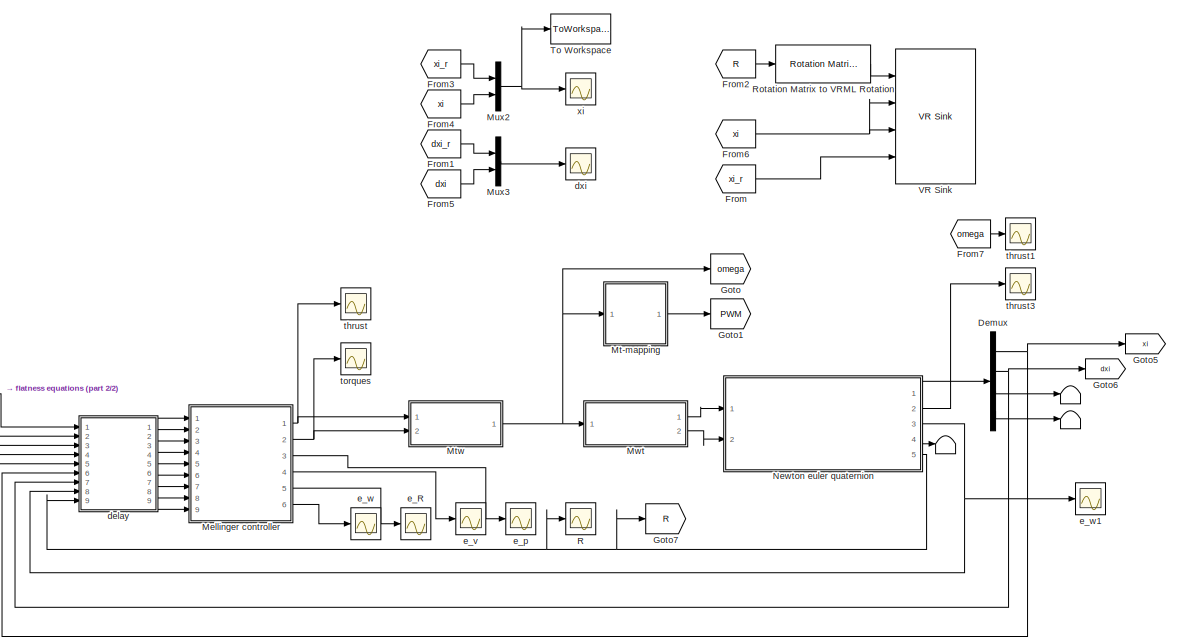
[diagram: root canvas - part 1/2, center side, full height]
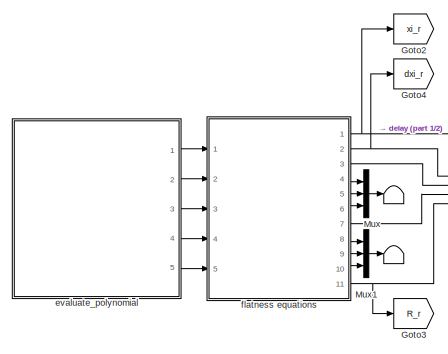
[diagram: root canvas - part 2/2, bottom left region]
MODEL slx_60e3ffbe1d15
KIND model
CONFIG AbsTol = auto
CONFIG FixedStep = auto
CONFIG MaxStep = auto
CONFIG MinStep = auto
CONFIG RelTol = 1e-3
CONFIG SampleTimeConstraint = Unconstrained
CONFIG Solver = VariableStepAuto
CONFIG SolverMode = Auto
CONFIG SolverName = VariableStepAuto
CONFIG StartTime = 0.0
CONFIG StopTime = 10
BLOCK [Terminator]  
BLOCK [Terminator]   
BLOCK [Terminator]      
BLOCK [Terminator]       
BLOCK [Terminator]        
BLOCK [Demux] Demux
  DisplayOption = bar
  Outputs = [3,3,3,3]
  Ports = [1, 4]
BLOCK [From] From
  GotoTag = xi_r
BLOCK [From] From1
  GotoTag = dxi_r
BLOCK [From] From2
  GotoTag = R
BLOCK [From] From3
  GotoTag = xi_r
BLOCK [From] From4
  GotoTag = xi
BLOCK [From] From5
  GotoTag = dxi
BLOCK [From] From6
  GotoTag = xi
BLOCK [From] From7
  GotoTag = omega
BLOCK [Goto] Goto
  GotoTag = omega
BLOCK [Goto] Goto1
  GotoTag = PWM
BLOCK [Goto] Goto2
  GotoTag = xi_r
BLOCK [Goto] Goto3
  GotoTag = R_r
BLOCK [Goto] Goto4
  GotoTag = dxi_r
BLOCK [Goto] Goto5
  GotoTag = xi
BLOCK [Goto] Goto6
  GotoTag = dxi
BLOCK [Goto] Goto7
  GotoTag = R
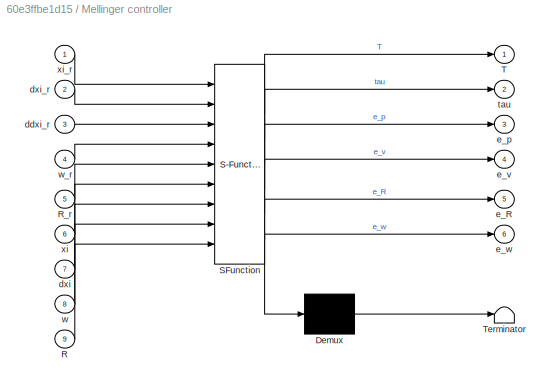
BLOCK [SubSystem] Mellinger controller
  ErrorFcn = Stateflow.Translate.translate
  PermitHierarchicalResolution = ExplicitOnly
  Ports = [9, 6]
  RequestExecContextInheritance = off
  SFBlockType = MATLAB Function
  SystemSampleTime = inner_h
  TreatAsAtomicUnit = on
  Variant = off
BLOCK [Demux] Mellinger controller/ Demux 
  Outputs = 1
  Ports = [1, 1]
BLOCK [S-Function] Mellinger controller/ SFunction 
  EnableBusSupport = on
  FunctionName = sf_sfun
  PortCounts = [9 7]
  Ports = [9, 7]
  SFunctionDeploymentMode = off
  Tag = Stateflow S-Function inner_mellinger_control 2
BLOCK [Terminator] Mellinger controller/ Terminator 
BLOCK [Inport] Mellinger controller/R
  IconDisplay = Port number
  Port = 9
BLOCK [Inport] Mellinger controller/R_r
  IconDisplay = Port number
  Port = 5
BLOCK [Outport] Mellinger controller/T
  IconDisplay = Port number
BLOCK [Inport] Mellinger controller/ddxi_r
  IconDisplay = Port number
  Port = 3
BLOCK [Inport] Mellinger controller/dxi
  IconDisplay = Port number
  Port = 7
BLOCK [Inport] Mellinger controller/dxi_r
  IconDisplay = Port number
  Port = 2
BLOCK [Outport] Mellinger controller/e_R
  IconDisplay = Port number
  Port = 5
BLOCK [Outport] Mellinger controller/e_p
  IconDisplay = Port number
  Port = 3
BLOCK [Outport] Mellinger controller/e_v
  IconDisplay = Port number
  Port = 4
BLOCK [Outport] Mellinger controller/e_w
  IconDisplay = Port number
  Port = 6
BLOCK [Outport] Mellinger controller/tau
  IconDisplay = Port number
  Port = 2
BLOCK [Inport] Mellinger controller/w
  IconDisplay = Port number
  Port = 8
BLOCK [Inport] Mellinger controller/w_r
  IconDisplay = Port number
  Port = 4
BLOCK [Inport] Mellinger controller/xi
  IconDisplay = Port number
  Port = 6
BLOCK [Inport] Mellinger controller/xi_r
  IconDisplay = Port number
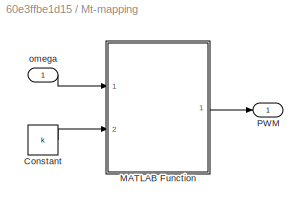
BLOCK [SubSystem] Mt-mapping
  Ports = [1, 1]
  RequestExecContextInheritance = off
  Variant = off
BLOCK [Constant] Mt-mapping/Constant
  Value = k
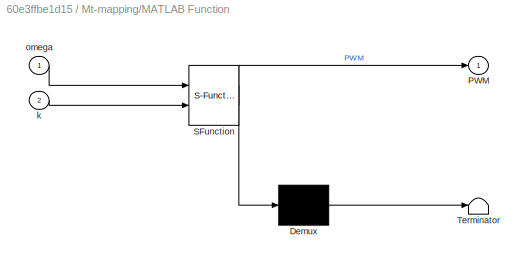
BLOCK [SubSystem] Mt-mapping/MATLAB Function
  ErrorFcn = Stateflow.Translate.translate
  PermitHierarchicalResolution = ExplicitOnly
  Ports = [2, 1]
  RequestExecContextInheritance = off
  SFBlockType = MATLAB Function
  TreatAsAtomicUnit = on
  Variant = off
BLOCK [Demux] Mt-mapping/MATLAB Function/ Demux 
  Outputs = 1
  Ports = [1, 1]
BLOCK [S-Function] Mt-mapping/MATLAB Function/ SFunction 
  EnableBusSupport = on
  FunctionName = sf_sfun
  PortCounts = [2 2]
  Ports = [2, 2]
  SFunctionDeploymentMode = off
  Tag = Stateflow S-Function inner_mellinger_control 3
BLOCK [Terminator] Mt-mapping/MATLAB Function/ Terminator 
BLOCK [Outport] Mt-mapping/MATLAB Function/PWM
  IconDisplay = Port number
BLOCK [Inport] Mt-mapping/MATLAB Function/k
  IconDisplay = Port number
  Port = 2
BLOCK [Inport] Mt-mapping/MATLAB Function/omega
  IconDisplay = Port number
BLOCK [Outport] Mt-mapping/PWM
  IconDisplay = Port number
BLOCK [Inport] Mt-mapping/omega
  IconDisplay = Port number
BLOCK [ModelReference] Mtw
  ModelNameDialog = thrust2omega.mdl
  ModelReferenceVersion = 1.3
  Ports = [2, 1]
  Variant = off
BLOCK [Mux] Mux
  DisplayOption = bar
  Inputs = 3
  Ports = [3, 1]
BLOCK [Mux] Mux1
  DisplayOption = bar
  Inputs = 3
  Ports = [3, 1]
BLOCK [Mux] Mux2
  DisplayOption = bar
  Inputs = 2
  Ports = [2, 1]
BLOCK [Mux] Mux3
  DisplayOption = bar
  Inputs = 2
  Ports = [2, 1]
BLOCK [ModelReference] Mwt
  ModelNameDialog = omega2thrust.mdl
  ModelReferenceVersion = 1.3
  Ports = [1, 2]
  Variant = off
BLOCK [ModelReference] Newton euler quaternion
  ModelNameDialog = quadcopter_model_c_NewtonEuler.mdl
  ModelReferenceVersion = 1.325
  Ports = [2, 5]
  Variant = off
BLOCK [Scope] R
  Ports = [1]
  ScopeSpecificationString = Simulink.scopes.TimeScopeBlockCfg('CurrentConfiguration', extmgr.ConfigurationSet(extmgr.Configuration('Core','General UI',true),extmgr.Configuration('Core','Source UI',true),extmgr.Configuration('Sources','WiredSimulink',true,'DataLoggingVariableName','ScopeData7'),extmgr.Configuration('Visuals','Time Domain',true,'SerializedDisplays',{struct('MinYLimReal','-1.24996','MaxYLimReal','1.25','YLabelR...<+1684ch>
BLOCK [Reference] Rotation Matrix to VRML Rotation  REF=vrlib/Utilities/Rotation Matrix
to VRML Rotation
  Ports = [1, 1]
  SourceBlock = vrlib/Utilities/Rotation Matrix\nto VRML Rotation
  SourceType = Rotation Matrix to VRML Rotation
BLOCK [ToWorkspace] To Workspace
  FixptAsFi = on
  MaxDataPoints = inf
  Ports = [1]
  SampleTime = -1
  Save2DSignal = 3-D array (concatenate along third dimension)
  SaveFormat = Timeseries
  VariableName = simout
BLOCK [Reference] VR Sink  REF=vrlib/VR Sink
  InstantiateOnLoad = on
  Ports = [4]
  SourceBlock = vrlib/VR Sink
  SourceType = Virtual Reality Sink
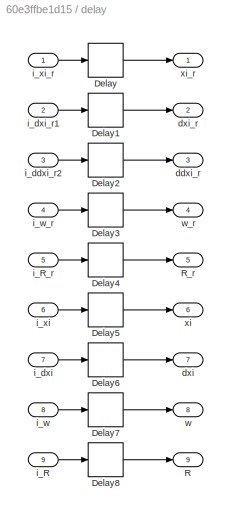
BLOCK [SubSystem] delay
  Ports = [9, 9]
  RequestExecContextInheritance = off
  Variant = off
BLOCK [Delay] delay/Delay
  DelayLength = 1
  InitialCondition = 0
  InputPortMap = u0
  Ports = [1, 1]
  SampleTime = inner_h
BLOCK [Delay] delay/Delay1
  DelayLength = 1
  InitialCondition = 0
  InputPortMap = u0
  Ports = [1, 1]
  SampleTime = inner_h
BLOCK [Delay] delay/Delay2
  DelayLength = 1
  InitialCondition = 0
  InputPortMap = u0
  Ports = [1, 1]
  SampleTime = inner_h
BLOCK [Delay] delay/Delay3
  DelayLength = 1
  InitialCondition = 0
  InputPortMap = u0
  Ports = [1, 1]
  SampleTime = inner_h
BLOCK [Delay] delay/Delay4
  DelayLength = 1
  InitialCondition = 0
  InputPortMap = u0
  Ports = [1, 1]
  SampleTime = inner_h
BLOCK [Delay] delay/Delay5
  DelayLength = 1
  InitialCondition = 0
  InputPortMap = u0
  Ports = [1, 1]
  SampleTime = inner_h
BLOCK [Delay] delay/Delay6
  DelayLength = 1
  InitialCondition = 0
  InputPortMap = u0
  Ports = [1, 1]
  SampleTime = inner_h
BLOCK [Delay] delay/Delay7
  DelayLength = 1
  InitialCondition = 0
  InputPortMap = u0
  Ports = [1, 1]
  SampleTime = inner_h
BLOCK [Delay] delay/Delay8
  DelayLength = 1
  InitialCondition = 0
  InputPortMap = u0
  Ports = [1, 1]
  SampleTime = inner_h
BLOCK [Outport] delay/R
  IconDisplay = Port number
  Port = 9
BLOCK [Outport] delay/R_r
  IconDisplay = Port number
  Port = 5
BLOCK [Outport] delay/ddxi_r
  IconDisplay = Port number
  Port = 3
BLOCK [Outport] delay/dxi
  IconDisplay = Port number
  Port = 7
BLOCK [Outport] delay/dxi_r
  IconDisplay = Port number
  Port = 2
BLOCK [Inport] delay/i_R
  IconDisplay = Port number
  Port = 9
BLOCK [Inport] delay/i_R_r
  IconDisplay = Port number
  Port = 5
BLOCK [Inport] delay/i_ddxi_r2
  IconDisplay = Port number
  Port = 3
BLOCK [Inport] delay/i_dxi
  IconDisplay = Port number
  Port = 7
BLOCK [Inport] delay/i_dxi_r1
  IconDisplay = Port number
  Port = 2
BLOCK [Inport] delay/i_w
  IconDisplay = Port number
  Port = 8
BLOCK [Inport] delay/i_w_r
  IconDisplay = Port number
  Port = 4
BLOCK [Inport] delay/i_xi
  IconDisplay = Port number
  Port = 6
BLOCK [Inport] delay/i_xi_r
  IconDisplay = Port number
BLOCK [Outport] delay/w
  IconDisplay = Port number
  Port = 8
BLOCK [Outport] delay/w_r
  IconDisplay = Port number
  Port = 4
BLOCK [Outport] delay/xi
  IconDisplay = Port number
  Port = 6
BLOCK [Outport] delay/xi_r
  IconDisplay = Port number
BLOCK [Scope] dxi
  Ports = [1]
  ScopeSpecificationString = Simulink.scopes.TimeScopeBlockCfg('CurrentConfiguration', extmgr.ConfigurationSet(extmgr.Configuration('Core','General UI',true),extmgr.Configuration('Core','Source UI',true),extmgr.Configuration('Sources','WiredSimulink',true,'DataLoggingVariableName','ScopeData2'),extmgr.Configuration('Visuals','Time Domain',true,'SerializedDisplays',{struct('MinYLimReal','-0.53915','MaxYLimReal','0.62993','YLab...<+1515ch>
BLOCK [Scope] e_R
  Ports = [1]
  ScopeSpecificationString = Simulink.scopes.TimeScopeBlockCfg('CurrentConfiguration', extmgr.ConfigurationSet(extmgr.Configuration('Core','General UI',true),extmgr.Configuration('Core','Source UI',true),extmgr.Configuration('Sources','WiredSimulink',true,'DataLoggingVariableName','ScopeData4'),extmgr.Configuration('Visuals','Time Domain',true,'SerializedDisplays',{struct('MinYLimReal','-0.00077','MaxYLimReal','0.00078','YLab...<+1489ch>
BLOCK [Scope] e_p
  Ports = [1]
  ScopeSpecificationString = Simulink.scopes.TimeScopeBlockCfg('CurrentConfiguration', extmgr.ConfigurationSet(extmgr.Configuration('Core','General UI',true),extmgr.Configuration('Core','Source UI',true),extmgr.Configuration('Sources','WiredSimulink',true,'DataLoggingVariableName','ScopeData6'),extmgr.Configuration('Visuals','Time Domain',true,'SerializedDisplays',{struct('MinYLimReal','-0.00089','MaxYLimReal','0.00252','YLab...<+1518ch>
BLOCK [Scope] e_v
  Ports = [1]
  ScopeSpecificationString = Simulink.scopes.TimeScopeBlockCfg('CurrentConfiguration', extmgr.ConfigurationSet(extmgr.Configuration('Core','General UI',true),extmgr.Configuration('Core','Source UI',true),extmgr.Configuration('Sources','WiredSimulink',true,'DataLoggingVariableName','ScopeData5'),extmgr.Configuration('Visuals','Time Domain',true,'SerializedDisplays',{struct('MinYLimReal','-0.01054','MaxYLimReal','0.02297','YLab...<+1489ch>
BLOCK [Scope] e_w
  Ports = [1]
  ScopeSpecificationString = Simulink.scopes.TimeScopeBlockCfg('CurrentConfiguration', extmgr.ConfigurationSet(extmgr.Configuration('Core','General UI',true),extmgr.Configuration('Core','Source UI',true),extmgr.Configuration('Sources','WiredSimulink',true,'DataLoggingVariableName','ScopeData3'),extmgr.Configuration('Visuals','Time Domain',true,'SerializedDisplays',{struct('MinYLimReal','-0.21981','MaxYLimReal','0.21921','YLab...<+1462ch>
BLOCK [Scope] e_w1
  Ports = [1]
  ScopeSpecificationString = Simulink.scopes.TimeScopeBlockCfg('CurrentConfiguration', extmgr.ConfigurationSet(extmgr.Configuration('Core','General UI',true),extmgr.Configuration('Core','Source UI',true),extmgr.Configuration('Sources','WiredSimulink',true,'DataLoggingVariableName','ScopeData2'),extmgr.Configuration('Visuals','Time Domain',true,'SerializedDisplays',{struct('MinYLimReal','-0.26068','MaxYLimReal','0.3742','YLabe...<+1461ch>
BLOCK [ModelReference] evaluate_polynomial
  ModelNameDialog = trajectory_evaluator.slx
  ModelReferenceVersion = 1.106
  Ports = [0, 5]
  Variant = off
BLOCK [ModelReference] flatness equations
  ModelNameDialog = flatnessGen.slx
  ModelReferenceVersion = 1.117
  Ports = [5, 11]
  Variant = off
BLOCK [Scope] thrust
  Ports = [1]
  ScopeSpecificationString = Simulink.scopes.TimeScopeBlockCfg('CurrentConfiguration', extmgr.ConfigurationSet(extmgr.Configuration('Core','General UI',true),extmgr.Configuration('Core','Source UI',true),extmgr.Configuration('Sources','WiredSimulink',true,'DataLoggingVariableName','ScopeData1'),extmgr.Configuration('Visuals','Time Domain',true,'SerializedDisplays',{struct('MinYLimReal','-0.03389','MaxYLimReal','0.30497','YLab...<+1427ch>
BLOCK [Scope] thrust1
  Ports = [1]
  ScopeSpecificationString = Simulink.scopes.TimeScopeBlockCfg('CurrentConfiguration', extmgr.ConfigurationSet(extmgr.Configuration('Core','General UI',true),extmgr.Configuration('Core','Source UI',true),extmgr.Configuration('Sources','WiredSimulink',true,'DataLoggingVariableName','ScopeData1'),extmgr.Configuration('Visuals','Time Domain',true,'SerializedDisplays',{struct('MinYLimReal','-237.15726','MaxYLimReal','2134.41535',...<+1452ch>
BLOCK [Scope] thrust3
  Ports = [1]
  ScopeSpecificationString = Simulink.scopes.TimeScopeBlockCfg('CurrentConfiguration', extmgr.ConfigurationSet(extmgr.Configuration('Core','General UI',true),extmgr.Configuration('Core','Source UI',true),extmgr.Configuration('Sources','WiredSimulink',true,'DataLoggingVariableName','ScopeData5'),extmgr.Configuration('Visuals','Time Domain',true,'SerializedDisplays',{struct('MinYLimReal','-0.16287','MaxYLimReal','1.12921','YLab...<+1551ch>
BLOCK [Scope] torques
  Ports = [1]
  ScopeSpecificationString = Simulink.scopes.TimeScopeBlockCfg('CurrentConfiguration', extmgr.ConfigurationSet(extmgr.Configuration('Core','General UI',true),extmgr.Configuration('Core','Source UI',true),extmgr.Configuration('Sources','WiredSimulink',true,'DataLoggingVariableName','ScopeData2'),extmgr.Configuration('Visuals','Time Domain',true,'SerializedDisplays',{struct('MinYLimReal','-0.41962','MaxYLimReal','0.27931','YLab...<+1489ch>
BLOCK [Scope] xi
  Ports = [1]
  ScopeSpecificationString = Simulink.scopes.TimeScopeBlockCfg('CurrentConfiguration', extmgr.ConfigurationSet(extmgr.Configuration('Core','General UI',true),extmgr.Configuration('Core','Source UI',true),extmgr.Configuration('Sources','WiredSimulink',true,'DataLoggingVariableName','ScopeData1'),extmgr.Configuration('Visuals','Time Domain',true,'SerializedDisplays',{struct('MinYLimReal','-0.01617','MaxYLimReal','-0.01195','YLa...<+1544ch>
NET Demux:1 -> Goto5:1, delay:6
NET Demux:2 -> Goto6:1, delay:7
LINE Demux:3 ->       :1
LINE Demux:4 ->        :1
LINE From1:1 -> Mux3:1
LINE From2:1 -> Rotation Matrix to VRML Rotation:1
LINE From3:1 -> Mux2:1
LINE From4:1 -> Mux2:2
LINE From5:1 -> Mux3:2
NET From6:1 -> VR Sink:2, VR Sink:3
LINE From7:1 -> thrust1:1
LINE From:1 -> VR Sink:4
NET Mellinger controller:1 -> Mtw:1, thrust:1
NET Mellinger controller:2 -> Mtw:2, torques:1
LINE Mellinger controller:3 -> e_p:1
LINE Mellinger controller:4 -> e_v:1
LINE Mellinger controller:5 -> e_R:1
LINE Mellinger controller:6 -> e_w:1
LINE Mt-mapping/Constant:1 -> Mt-mapping/MATLAB Function:2
LINE Mt-mapping/MATLAB Function:1 -> Mt-mapping/PWM:1
LINE Mt-mapping/omega:1 -> Mt-mapping/MATLAB Function:1
LINE Mt-mapping:1 -> Goto1:1
NET Mtw:1 -> Goto:1, Mt-mapping:1, Mwt:1
LINE Mux1:1 ->   :1
NET Mux2:1 -> To Workspace:1, xi:1
LINE Mux3:1 -> dxi:1
LINE Mux:1 ->  :1
LINE Mwt:1 -> Newton euler quaternion:1
LINE Mwt:2 -> Newton euler quaternion:2
LINE Newton euler quaternion:1 -> Demux:1
LINE Newton euler quaternion:2 -> thrust3:1
NET Newton euler quaternion:3 -> delay:8, e_w1:1
LINE Newton euler quaternion:4 ->      :1
NET Newton euler quaternion:5 -> Goto7:1, R:1, delay:9
LINE Rotation Matrix to VRML Rotation:1 -> VR Sink:1
LINE delay/Delay1:1 -> delay/dxi_r:1
LINE delay/Delay2:1 -> delay/ddxi_r:1
LINE delay/Delay3:1 -> delay/w_r:1
LINE delay/Delay4:1 -> delay/R_r:1
LINE delay/Delay5:1 -> delay/xi:1
LINE delay/Delay6:1 -> delay/dxi:1
LINE delay/Delay7:1 -> delay/w:1
LINE delay/Delay8:1 -> delay/R:1
LINE delay/Delay:1 -> delay/xi_r:1
LINE delay/i_R:1 -> delay/Delay8:1
LINE delay/i_R_r:1 -> delay/Delay4:1
LINE delay/i_ddxi_r2:1 -> delay/Delay2:1
LINE delay/i_dxi:1 -> delay/Delay6:1
LINE delay/i_dxi_r1:1 -> delay/Delay1:1
LINE delay/i_w:1 -> delay/Delay7:1
LINE delay/i_w_r:1 -> delay/Delay3:1
LINE delay/i_xi:1 -> delay/Delay5:1
LINE delay/i_xi_r:1 -> delay/Delay:1
LINE delay:1 -> Mellinger controller:1
LINE delay:2 -> Mellinger controller:2
LINE delay:3 -> Mellinger controller:3
LINE delay:4 -> Mellinger controller:4
LINE delay:5 -> Mellinger controller:5
LINE delay:6 -> Mellinger controller:6
LINE delay:7 -> Mellinger controller:7
LINE delay:8 -> Mellinger controller:8
LINE delay:9 -> Mellinger controller:9
LINE evaluate_polynomial:1 -> flatness equations:1
LINE evaluate_polynomial:2 -> flatness equations:2
LINE evaluate_polynomial:3 -> flatness equations:3
LINE evaluate_polynomial:4 -> flatness equations:4
LINE evaluate_polynomial:5 -> flatness equations:5
NET flatness equations:1 -> Goto2:1, delay:1
LINE flatness equations:10 -> Mux1:3
NET flatness equations:11 -> Goto3:1, delay:5
NET flatness equations:2 -> Goto4:1, delay:2
LINE flatness equations:3 -> delay:3
LINE flatness equations:4 -> Mux:1
LINE flatness equations:5 -> Mux:2
LINE flatness equations:6 -> Mux:3
LINE flatness equations:7 -> delay:4
LINE flatness equations:8 -> Mux1:1
LINE flatness equations:9 -> Mux1:2
note: NET lines group one-source signal fan-out (src -> all destinations, sorted); 1:1 wires keep LINE
CHART Mellinger controller states=1 transitions=1
  STATE_LABEL 'eML_blk_kernel()'
  STATE_LABEL 'SCRIPT:\nfunction [T, tau, e_p, e_v, e_R, e_w] = controller(xi_r, dxi_r, ddxi_r, w_r, R_r, xi, dxi, w, R)\n%I = [0.0820; 0.0845; 0.1377];\n%A=[0;0;0]\n%m = 4.34;\n\nm = 0.027;\ng = 9.81;\n% Functional tuning for type A\nK_p = 0.2 * eye(3);\nK_v = 0.025 * eye(3);\nK_R = 0.1 * eye(3);\nK_w = 0.001 * eye(3);\n\n% Functional tuning for type B\nK_p = 0.4 * eye(3);\nK_v = 0.1* eye(3);\nK_R = 0.4 * eye(3);\nK_w = 0.01 * e...<+642ch>'
CHART Mt-mapping/MATLAB Function states=1 transitions=1
  STATE_LABEL 'eML_blk_kernel()'
  STATE_LABEL 'SCRIPT:\nfunction PWM = Mt(omega, k)\n%#codegen\nrotor_thrusts = k.*omega.^2;\nbeta1 = 0.0877;\nbeta2 = 0.0660;\nPWM =  -beta1/(2*beta2) + sqrt((beta1/(2*beta2))^2 + rotor_thrusts/beta2);'
